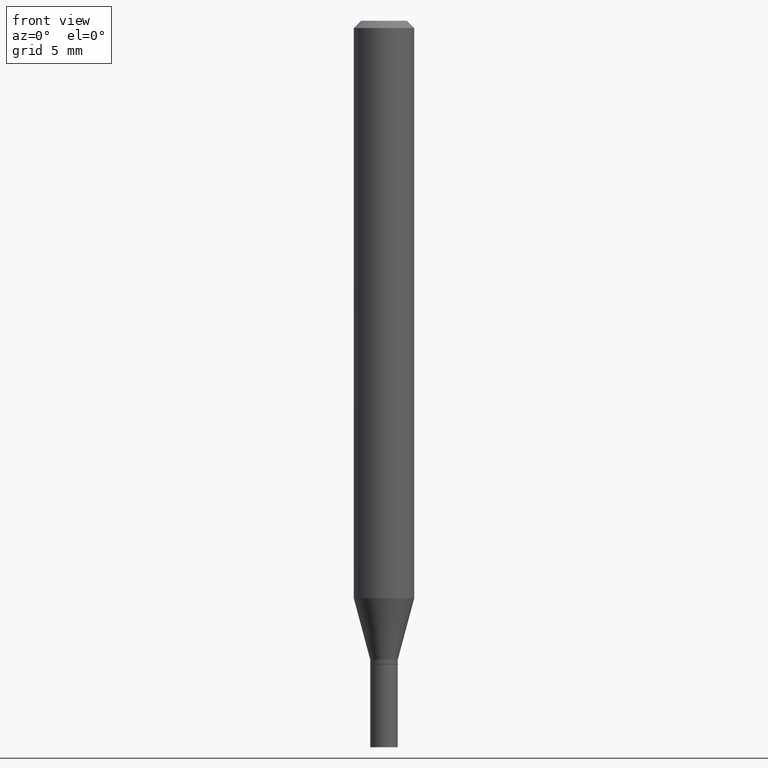
[diagram: clean part render]
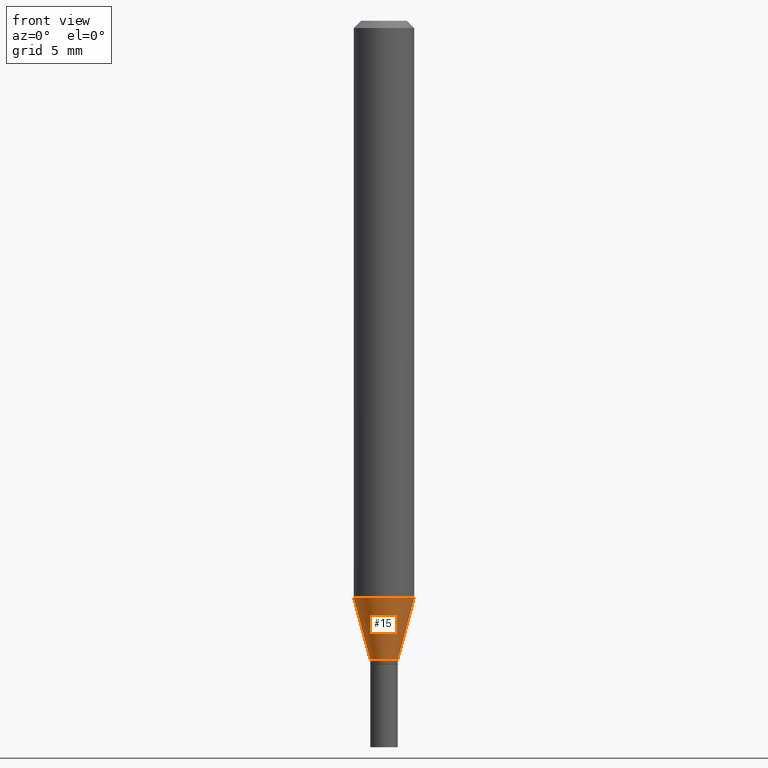
[diagram: same view with one face highlighted and labeled with its STEP entity id]
A machine part, front view. The second image highlights one B-rep face of the part: STEP entity #15.
In plain terms, the highlighted conical surface has half-angle 15 deg.
Its self-contained STEP definition (entity closure, byte-faithful):
#15 = ADVANCED_FACE ( 'NONE', ( #267 ), #38, .T. ) ;
#27 = EDGE_CURVE ( 'NONE', #204, #231, #432, .T. ) ;
#38 = CONICAL_SURFACE ( 'NONE', #147, 0.02849999999999992817, 0.2617993877991498519 ) ;
#64 = ORIENTED_EDGE ( 'NONE', *, *, #461, .T. ) ;
#66 = CARTESIAN_POINT ( 'NONE',  ( 3.225573355358195400E-29, -4.605263885934108641E-15, -1.318999999999999950 ) ) ;
#68 = CIRCLE ( 'NONE', #142, 0.06250000000000000000 ) ;
#81 = EDGE_CURVE ( 'NONE', #231, #374, #68, .T. ) ;
#86 = CIRCLE ( 'NONE', #126, 0.02849999999999992817 ) ;
#112 = CARTESIAN_POINT ( 'NONE',  ( 0.02849999999999992817, -4.804278322248167148E-15, -1.318999999999999950 ) ) ;
#126 = AXIS2_PLACEMENT_3D ( 'NONE', #235, #390, #212 ) ;
#137 = CARTESIAN_POINT ( 'NONE',  ( -0.02849999999999992817, -4.402759206242480303E-15, -1.318999999999999950 ) ) ;
#142 = AXIS2_PLACEMENT_3D ( 'NONE', #143, #273, #430 ) ;
#143 = CARTESIAN_POINT ( 'NONE',  ( 2.915268485035931806E-29, -4.162230770425907235E-15, -1.192110272542658223 ) ) ;
#144 = DIRECTION ( 'NONE',  ( -2.445468806185136597E-29, 3.491481338843145583E-15, 1.000000000000000000 ) ) ;
#147 = AXIS2_PLACEMENT_3D ( 'NONE', #66, #144, #244 ) ;
#199 = EDGE_LOOP ( 'NONE', ( #278, #457, #64, #261 ) ) ;
#204 = VERTEX_POINT ( 'NONE', #452 ) ;
#212 = DIRECTION ( 'NONE',  ( 1.000000000000000000, -6.982962677686265133E-15, 0.000000000000000000 ) ) ;
#216 = EDGE_CURVE ( 'NONE', #204, #376, #86, .T. ) ;
#231 = VERTEX_POINT ( 'NONE', #428 ) ;
#235 = CARTESIAN_POINT ( 'NONE',  ( 3.225573355358195400E-29, -4.605263885934108641E-15, -1.318999999999999950 ) ) ;
#244 = DIRECTION ( 'NONE',  ( 1.000000000000000000, -6.982962677686265133E-15, 0.000000000000000000 ) ) ;
#261 = ORIENTED_EDGE ( 'NONE', *, *, #81, .F. ) ;
#267 = FACE_OUTER_BOUND ( 'NONE', #199, .T. ) ;
#273 = DIRECTION ( 'NONE',  ( -2.445468806185136597E-29, 3.491481338843145583E-15, 1.000000000000000000 ) ) ;
#278 = ORIENTED_EDGE ( 'NONE', *, *, #27, .F. ) ;
#289 = CARTESIAN_POINT ( 'NONE',  ( 0.02849999999999992817, -4.804278322248167148E-15, -1.318999999999999950 ) ) ;
#319 = VECTOR ( 'NONE', #445, 39.37007874015748854 ) ;
#341 = VECTOR ( 'NONE', #423, 39.37007874015748854 ) ;
#364 = CARTESIAN_POINT ( 'NONE',  ( 0.06250000000000000000, -4.598665937781298116E-15, -1.192110272542658223 ) ) ;
#374 = VERTEX_POINT ( 'NONE', #364 ) ;
#376 = VERTEX_POINT ( 'NONE', #112 ) ;
#390 = DIRECTION ( 'NONE',  ( -2.445468806185136597E-29, 3.491481338843145583E-15, 1.000000000000000000 ) ) ;
#423 = DIRECTION ( 'NONE',  ( -0.2588190451025211281, 5.211531920934547886E-15, 0.9659258262890679791 ) ) ;
#428 = CARTESIAN_POINT ( 'NONE',  ( -0.06250000000000000000, -3.718141560575843830E-15, -1.192110272542658223 ) ) ;
#430 = DIRECTION ( 'NONE',  ( 1.000000000000000000, -6.982962677686270655E-15, 0.000000000000000000 ) ) ;
#432 = LINE ( 'NONE', #137, #341 ) ;
#445 = DIRECTION ( 'NONE',  ( 0.2588190451025211281, 1.565188264969622954E-15, 0.9659258262890679791 ) ) ;
#449 = LINE ( 'NONE', #289, #319 ) ;
#452 = CARTESIAN_POINT ( 'NONE',  ( -0.02849999999999992817, -4.060450383409162461E-15, -1.318999999999999950 ) ) ;
#457 = ORIENTED_EDGE ( 'NONE', *, *, #216, .T. ) ;
#461 = EDGE_CURVE ( 'NONE', #376, #374, #449, .T. ) ;